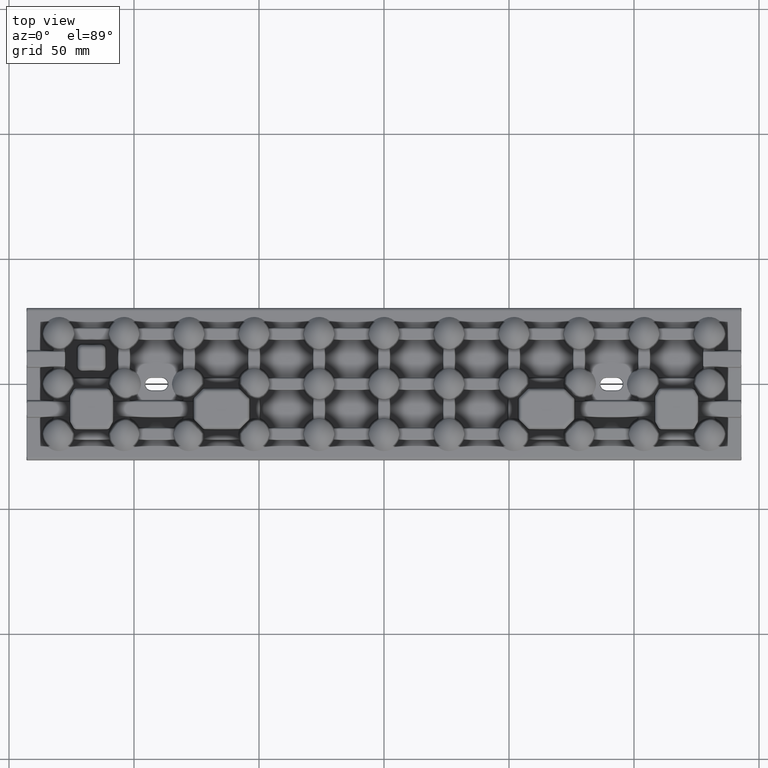
[diagram: clean part render]
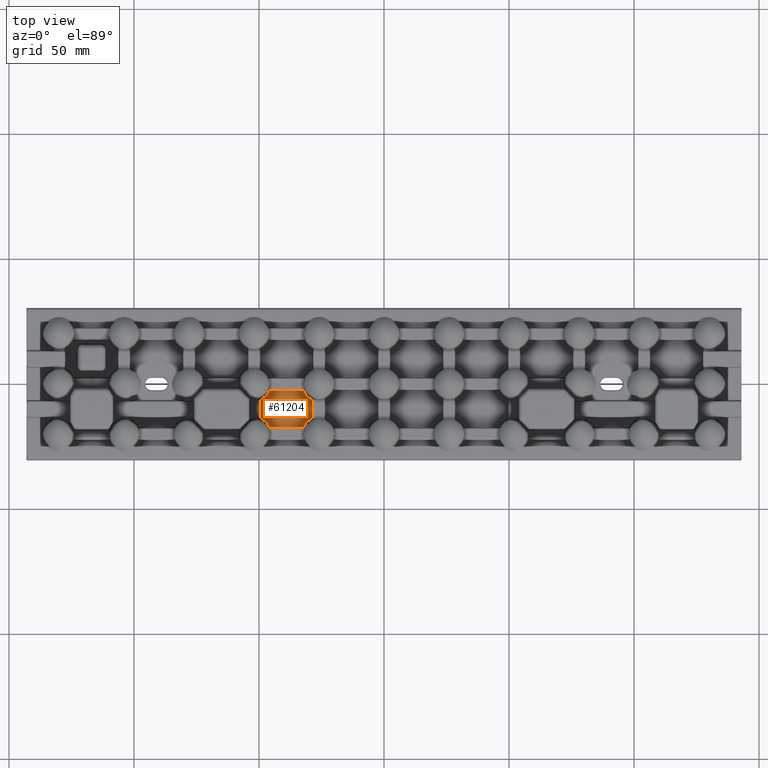
[diagram: same view with one face highlighted and labeled with its STEP entity id]
A machine part, top view. The second image highlights one B-rep face of the part: STEP entity #61204.
In plain terms, the highlighted planar face has unit normal (0, 0, 1).
Its self-contained STEP definition (entity closure, byte-faithful):
#1931 = EDGE_CURVE ( 'NONE', #59445, #65813, #51019, .T. ) ;
#2279 = CARTESIAN_POINT ( 'NONE',  ( -31.78047818923737800, -16.50428686415570900, 2.000000000000000400 ) ) ;
#3163 = EDGE_LOOP ( 'NONE', ( #106714, #17294, #30713, #32365, #107204, #52531, #73843, #68687 ) ) ;
#3470 = CARTESIAN_POINT ( 'NONE',  ( -46.21952292274767900, -3.495713168659601700, 2.000000000000000400 ) ) ;
#4554 = CARTESIAN_POINT ( 'NONE',  ( -28.74142219370184000, -6.249218921088035100, 2.000000000000000000 ) ) ;
#8170 = CARTESIAN_POINT ( 'NONE',  ( -28.74142219370183700, -13.75078107891198400, 2.000000000000000000 ) ) ;
#8948 = VECTOR ( 'NONE', #15340, 1000.000000000000000 ) ;
#9044 = CARTESIAN_POINT ( 'NONE',  ( -32.15196198417124400, -2.741422193701771500, 2.000000000000000000 ) ) ;
#9586 = B_SPLINE_CURVE_WITH_KNOTS ( 'NONE', 3,
 ( #10354, #60521, #27180, #85718, #35596, #94167, #44031, #102604, #52474, #2279, #60879, #10731 ),
 .UNSPECIFIED., .F., .F.,
 ( 4, 2, 2, 2, 2, 4 ),
 ( 3.878959614448864200E-018, 0.001243938299592797000, 0.001865907449389188800, 0.002487876599185580900, 0.003731814898778369000, 0.004975753198371156600 ),
 .UNSPECIFIED. ) ;
#10354 = CARTESIAN_POINT ( 'NONE',  ( -28.74142219370183700, -13.75078107891198400, 2.000000000000000000 ) ) ;
#10731 = CARTESIAN_POINT ( 'NONE',  ( -32.15196198417129400, -17.25857780629828000, 2.000000000000000000 ) ) ;
#11550 = LINE ( 'NONE', #13517, #8948 ) ;
#11895 = CARTESIAN_POINT ( 'NONE',  ( -45.84803937555466300, -2.741422193701768400, 2.000000000000000000 ) ) ;
#13517 = CARTESIAN_POINT ( 'NONE',  ( -31.56417109729744300, -17.25857780629828000, 2.000000000000000000 ) ) ;
#15340 = DIRECTION ( 'NONE',  ( 1.000000000000000000, -3.304235192336801100E-016, -0.0000000000000000000 ) ) ;
#15460 = LINE ( 'NONE', #58508, #79579 ) ;
#16631 = LINE ( 'NONE', #107724, #61177 ) ;
#16977 = DIRECTION ( 'NONE',  ( 0.0000000000000000000, 0.0000000000000000000, 1.000000000000000000 ) ) ;
#17294 = ORIENTED_EDGE ( 'NONE', *, *, #86991, .T. ) ;
#19928 = CARTESIAN_POINT ( 'NONE',  ( -48.87557720051918900, -6.075345585243846700, 1.999999999999999100 ) ) ;
#21006 = CARTESIAN_POINT ( 'NONE',  ( -31.81109183207200200, -3.511651096795590700, 2.000000000000000400 ) ) ;
#22435 = CARTESIAN_POINT ( 'NONE',  ( -46.64256929262779700, -15.79265970154829900, 1.999999999999998700 ) ) ;
#25829 = CARTESIAN_POINT ( 'NONE',  ( -49.25857780629812800, -13.75078054035937400, 2.000000000000000000 ) ) ;
#26162 = EDGE_CURVE ( 'NONE', #59445, #39017, #11550, .T. ) ;
#26860 = CARTESIAN_POINT ( 'NONE',  ( -28.74142219370184000, -6.249218921088035100, 2.000000000000000000 ) ) ;
#27180 = CARTESIAN_POINT ( 'NONE',  ( -29.48450296657468100, -14.13240086758853300, 1.999999999999999100 ) ) ;
#28365 = CARTESIAN_POINT ( 'NONE',  ( -48.51549718556344700, -5.867599594387670000, 1.999999999999998700 ) ) ;
#30713 = ORIENTED_EDGE ( 'NONE', *, *, #88762, .F. ) ;
#30878 = CARTESIAN_POINT ( 'NONE',  ( -47.52118822269252300, -14.88229075457776100, 1.999999999999998700 ) ) ;
#32249 = LINE ( 'NONE', #47534, #96400 ) ;
#32365 = ORIENTED_EDGE ( 'NONE', *, *, #45649, .T. ) ;
#33448 = PLANE ( 'NONE',  #79365 ) ;
#35596 = CARTESIAN_POINT ( 'NONE',  ( -30.15641042051814900, -14.61920080714688900, 2.000000000000031500 ) ) ;
#36598 = CARTESIAN_POINT ( 'NONE',  ( -49.25857780629812800, -6.249219459640680300, 2.000000000000000000 ) ) ;
#36767 = CARTESIAN_POINT ( 'NONE',  ( -47.84358995723952300, -5.380799480722059200, 2.000000000000031100 ) ) ;
#37845 = CARTESIAN_POINT ( 'NONE',  ( -31.35743144489499900, -4.207340293929705800, 1.999999999999999100 ) ) ;
#37939 = EDGE_CURVE ( 'NONE', #105994, #65813, #16631, .T. ) ;
#39017 = VERTEX_POINT ( 'NONE', #87893 ) ;
#39264 = CARTESIAN_POINT ( 'NONE',  ( -48.51403999797156500, -14.13332757233445300, 1.999999999999999100 ) ) ;
#40133 = CARTESIAN_POINT ( 'NONE',  ( -45.84803937555466300, -2.741422193701768400, 2.000000000000000000 ) ) ;
#41437 = B_SPLINE_CURVE_WITH_KNOTS ( 'NONE', 3,
 ( #94982, #19928, #28365, #86881, #36767, #95351, #45225, #103793, #53673, #3470, #62053, #11895 ),
 .UNSPECIFIED., .F., .F.,
 ( 4, 2, 2, 2, 2, 4 ),
 ( 1.734723475976807100E-018, 0.001243938167615023600, 0.001865907251422542100, 0.002487876335230060700, 0.003731814502845098000, 0.004975752670460135300 ),
 .UNSPECIFIED. ) ;
#41889 = CARTESIAN_POINT ( 'NONE',  ( 0.0000000000000000000, 0.0000000000000000000, 2.000000000000000000 ) ) ;
#44031 = CARTESIAN_POINT ( 'NONE',  ( -30.62680653960150300, -15.03561517527962500, 2.000000000000177600 ) ) ;
#44612 = CARTESIAN_POINT ( 'NONE',  ( -45.84803937555472700, -17.25857780629827700, 2.000000000000000000 ) ) ;
#45225 = CARTESIAN_POINT ( 'NONE',  ( -47.37319400958027400, -4.964385004141733200, 2.000000000000177600 ) ) ;
#45649 = EDGE_CURVE ( 'NONE', #45719, #74912, #15460, .T. ) ;
#45719 = VERTEX_POINT ( 'NONE', #9044 ) ;
#46320 = CARTESIAN_POINT ( 'NONE',  ( -30.16257225230543800, -5.388148957186222900, 2.000000000000000400 ) ) ;
#47534 = CARTESIAN_POINT ( 'NONE',  ( -28.74142219370184000, -5.564171097297352400, 2.000000000000000000 ) ) ;
#47763 = CARTESIAN_POINT ( 'NONE',  ( -49.25857780629812800, -13.75078054035937400, 2.000000000000000000 ) ) ;
#48871 = EDGE_CURVE ( 'NONE', #78374, #39017, #9586, .T. ) ;
#51019 = B_SPLINE_CURVE_WITH_KNOTS ( 'NONE', 3,
 ( #80991, #64198, #22435, #30878, #89423, #39264, #97876, #47763 ),
 .UNSPECIFIED., .F., .F.,
 ( 4, 2, 2, 4 ),
 ( 0.0000000000000000000, 0.002490340576285342500, 0.003735510864428021000, 0.004980681152570699800 ),
 .UNSPECIFIED. ) ;
#52474 = CARTESIAN_POINT ( 'NONE',  ( -31.32086506622065900, -15.81156390113697400, 1.999999999999999600 ) ) ;
#52531 = ORIENTED_EDGE ( 'NONE', *, *, #37939, .T. ) ;
#53673 = CARTESIAN_POINT ( 'NONE',  ( -46.67913578207338100, -4.188436233939164300, 2.000000000000000000 ) ) ;
#54758 = CARTESIAN_POINT ( 'NONE',  ( -29.12562065174540000, -6.074801277922651000, 2.000000000000001800 ) ) ;
#57631 = DIRECTION ( 'NONE',  ( -0.0000000000000000000, -1.000000000000000000, 0.0000000000000000000 ) ) ;
#58508 = CARTESIAN_POINT ( 'NONE',  ( -46.43582890270247500, -2.741422193701768400, 2.000000000000000000 ) ) ;
#59445 = VERTEX_POINT ( 'NONE', #44612 ) ;
#60521 = CARTESIAN_POINT ( 'NONE',  ( -29.12442285235376000, -13.92465494751892900, 1.999999999999999600 ) ) ;
#60879 = CARTESIAN_POINT ( 'NONE',  ( -31.98196378828365000, -16.87445052750879200, 2.000000000000000000 ) ) ;
#61177 = VECTOR ( 'NONE', #57631, 1000.000000000000000 ) ;
#61204 = ADVANCED_FACE ( 'NONE', ( #84255 ), #33448, .T. ) ;
#62053 = CARTESIAN_POINT ( 'NONE',  ( -46.01803746629662600, -3.125549456848770300, 1.999999999999999100 ) ) ;
#62202 = EDGE_CURVE ( 'NONE', #105994, #74912, #41437, .T. ) ;
#62784 = B_SPLINE_CURVE_WITH_KNOTS ( 'NONE', 3,
 ( #87999, #21006, #37845, #96443, #46320, #104859, #54758, #4554 ),
 .UNSPECIFIED., .F., .F.,
 ( 4, 2, 2, 4 ),
 ( 1.144950348284594800E-017, 0.002490340932246995500, 0.003735511398370488900, 0.004980681864493982300 ),
 .UNSPECIFIED. ) ;
#64198 = CARTESIAN_POINT ( 'NONE',  ( -46.18890931649945500, -16.48834893529900500, 1.999999999999999600 ) ) ;
#64343 = DIRECTION ( 'NONE',  ( -4.625929269271473100E-016, 1.000000000000000000, -0.0000000000000000000 ) ) ;
#65813 = VERTEX_POINT ( 'NONE', #25829 ) ;
#68687 = ORIENTED_EDGE ( 'NONE', *, *, #26162, .T. ) ;
#73843 = ORIENTED_EDGE ( 'NONE', *, *, #1931, .F. ) ;
#74912 = VERTEX_POINT ( 'NONE', #40133 ) ;
#75134 = VERTEX_POINT ( 'NONE', #26860 ) ;
#75545 = DIRECTION ( 'NONE',  ( -1.000000000000000000, 0.0000000000000000000, 0.0000000000000000000 ) ) ;
#78374 = VERTEX_POINT ( 'NONE', #8170 ) ;
#79365 = AXIS2_PLACEMENT_3D ( 'NONE', #41889, #16977, #75545 ) ;
#79579 = VECTOR ( 'NONE', #108578, 1000.000000000000000 ) ;
#80991 = CARTESIAN_POINT ( 'NONE',  ( -45.84803937555472700, -17.25857780629827700, 2.000000000000000000 ) ) ;
#84255 = FACE_OUTER_BOUND ( 'NONE', #3163, .T. ) ;
#85718 = CARTESIAN_POINT ( 'NONE',  ( -29.99248749987316700, -14.49150989298649600, 1.999999999999999600 ) ) ;
#86881 = CARTESIAN_POINT ( 'NONE',  ( -48.00751281947749000, -5.508490440738019500, 1.999999999999999600 ) ) ;
#86991 = EDGE_CURVE ( 'NONE', #78374, #75134, #32249, .T. ) ;
#87893 = CARTESIAN_POINT ( 'NONE',  ( -32.15196198417129400, -17.25857780629828000, 2.000000000000000000 ) ) ;
#87999 = CARTESIAN_POINT ( 'NONE',  ( -32.15196198417124400, -2.741422193701771500, 2.000000000000000000 ) ) ;
#88762 = EDGE_CURVE ( 'NONE', #45719, #75134, #62784, .T. ) ;
#89423 = CARTESIAN_POINT ( 'NONE',  ( -47.83742808807166800, -14.61185077963604900, 1.999999999999999100 ) ) ;
#94167 = CARTESIAN_POINT ( 'NONE',  ( -30.47323715504084200, -14.89086670553474600, 2.000000000000030600 ) ) ;
#94982 = CARTESIAN_POINT ( 'NONE',  ( -49.25857780629812800, -6.249219459640680300, 2.000000000000000000 ) ) ;
#95351 = CARTESIAN_POINT ( 'NONE',  ( -47.52676333331902500, -5.109133501515210600, 2.000000000000031100 ) ) ;
#96400 = VECTOR ( 'NONE', #64343, 1000.000000000000000 ) ;
#96443 = CARTESIAN_POINT ( 'NONE',  ( -30.47881223553094200, -5.117709080639561300, 1.999999999999999100 ) ) ;
#97876 = CARTESIAN_POINT ( 'NONE',  ( -48.87437938515630300, -13.92519819665841900, 2.000000000000000900 ) ) ;
#102604 = CARTESIAN_POINT ( 'NONE',  ( -31.06226852269039900, -15.48686676802039300, 2.000000000000178100 ) ) ;
#103793 = CARTESIAN_POINT ( 'NONE',  ( -46.93773221060357100, -4.513133390932623900, 2.000000000000177600 ) ) ;
#104859 = CARTESIAN_POINT ( 'NONE',  ( -29.48596012948613100, -5.866671980971505100, 2.000000000000000400 ) ) ;
#105994 = VERTEX_POINT ( 'NONE', #36598 ) ;
#106714 = ORIENTED_EDGE ( 'NONE', *, *, #48871, .F. ) ;
#107204 = ORIENTED_EDGE ( 'NONE', *, *, #62202, .F. ) ;
#107724 = CARTESIAN_POINT ( 'NONE',  ( -49.25857780629812800, -14.43582890270258700, 2.000000000000000000 ) ) ;
#108578 = DIRECTION ( 'NONE',  ( -1.000000000000000000, 2.271661694731551500E-016, -0.0000000000000000000 ) ) ;